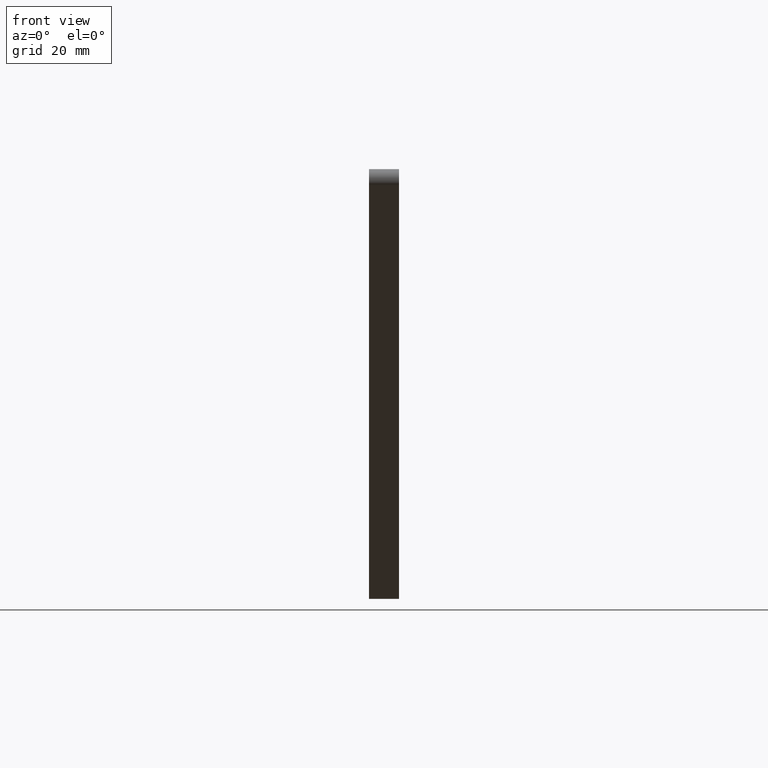
[diagram: clean part render]
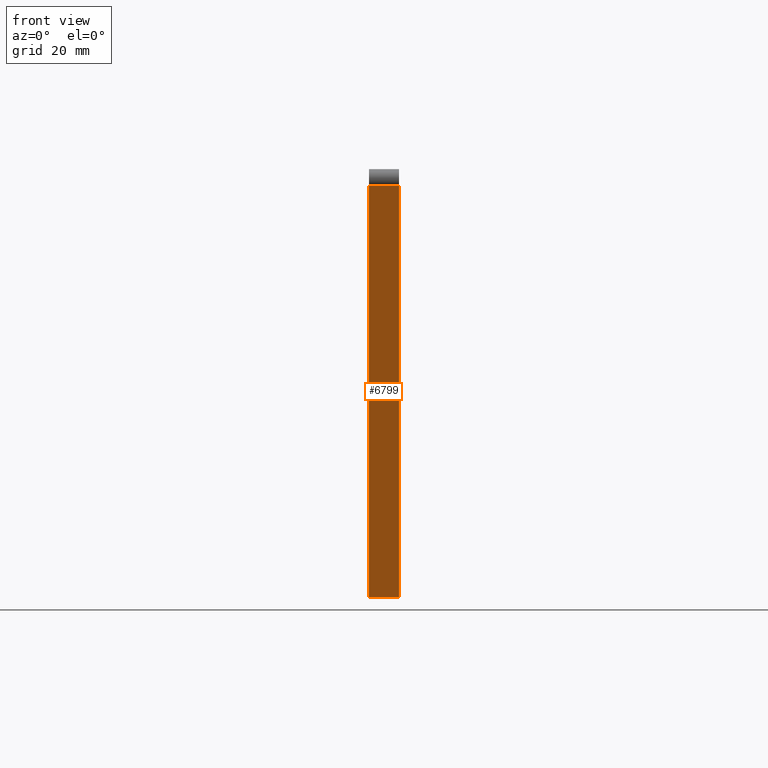
[diagram: same view with one face highlighted and labeled with its STEP entity id]
A machine part, front view. The second image highlights one B-rep face of the part: STEP entity #6799.
In plain terms, the highlighted planar face has unit normal (0, -0.5992, -0.8006).
Its self-contained STEP definition (entity closure, byte-faithful):
#47 = CARTESIAN_POINT ( 'NONE',  ( -2.500000000000000000, -25.14880911321005641, -2.700892242464128401 ) ) ;
#370 = EDGE_CURVE ( 'NONE', #9140, #8377, #8610, .T. ) ;
#548 = DIRECTION ( 'NONE',  ( 1.000000000000000000, -0.000000000000000000, -0.000000000000000000 ) ) ;
#689 = CARTESIAN_POINT ( 'NONE',  ( -2.500000000000000000, 66.87436308221853665, -71.57573618852293862 ) ) ;
#928 = PLANE ( 'NONE',  #3101 ) ;
#992 = EDGE_CURVE ( 'NONE', #10175, #3266, #8268, .T. ) ;
#1589 = DIRECTION ( 'NONE',  ( 1.000000000000000000, -0.000000000000000000, -0.000000000000000000 ) ) ;
#1639 = CARTESIAN_POINT ( 'NONE',  ( -2.500000000000000000, -25.14880911321005641, -2.700892242464130621 ) ) ;
#2094 = ORIENTED_EDGE ( 'NONE', *, *, #370, .F. ) ;
#3101 = AXIS2_PLACEMENT_3D ( 'NONE', #47, #6309, #8349 ) ;
#3266 = VERTEX_POINT ( 'NONE', #10722 ) ;
#4661 = CARTESIAN_POINT ( 'NONE',  ( 2.500000000000000000, -25.14880911321005641, -2.700892242464130621 ) ) ;
#5509 = VECTOR ( 'NONE', #1589, 1000.000000000000000 ) ;
#6193 = VECTOR ( 'NONE', #12440, 1000.000000000000114 ) ;
#6309 = DIRECTION ( 'NONE',  ( 0.000000000000000000, -0.5992060754733746775, -0.8005948283094241891 ) ) ;
#6799 = ADVANCED_FACE ( 'NONE', ( #8298 ), #928, .T. ) ;
#6842 = CARTESIAN_POINT ( 'NONE',  ( -2.500000000000000000, -25.14880911321005641, -2.700892242464130621 ) ) ;
#7078 = EDGE_LOOP ( 'NONE', ( #11157, #2094, #9366, #9537 ) ) ;
#7799 = LINE ( 'NONE', #8006, #6193 ) ;
#8006 = CARTESIAN_POINT ( 'NONE',  ( -2.500000000000000000, -25.14880911321005641, -2.700892242464128401 ) ) ;
#8268 = LINE ( 'NONE', #689, #10422 ) ;
#8298 = FACE_OUTER_BOUND ( 'NONE', #7078, .T. ) ;
#8349 = DIRECTION ( 'NONE',  ( 0.000000000000000000, 0.8005948283094241891, -0.5992060754733746775 ) ) ;
#8377 = VERTEX_POINT ( 'NONE', #4661 ) ;
#8382 = CARTESIAN_POINT ( 'NONE',  ( -2.500000000000000000, 66.87436308221853665, -71.57573618852293862 ) ) ;
#8581 = EDGE_CURVE ( 'NONE', #9140, #10175, #7799, .T. ) ;
#8610 = LINE ( 'NONE', #1639, #5509 ) ;
#9140 = VERTEX_POINT ( 'NONE', #6842 ) ;
#9170 = DIRECTION ( 'NONE',  ( 0.000000000000000000, 0.8005948283094241891, -0.5992060754733745664 ) ) ;
#9366 = ORIENTED_EDGE ( 'NONE', *, *, #8581, .T. ) ;
#9537 = ORIENTED_EDGE ( 'NONE', *, *, #992, .T. ) ;
#10175 = VERTEX_POINT ( 'NONE', #8382 ) ;
#10422 = VECTOR ( 'NONE', #548, 1000.000000000000000 ) ;
#10722 = CARTESIAN_POINT ( 'NONE',  ( 2.500000000000000000, 66.87436308221853665, -71.57573618852293862 ) ) ;
#10835 = VECTOR ( 'NONE', #9170, 1000.000000000000114 ) ;
#11157 = ORIENTED_EDGE ( 'NONE', *, *, #12769, .F. ) ;
#11646 = LINE ( 'NONE', #12365, #10835 ) ;
#12365 = CARTESIAN_POINT ( 'NONE',  ( 2.500000000000000000, -25.14880911321005641, -2.700892242464128401 ) ) ;
#12440 = DIRECTION ( 'NONE',  ( 0.000000000000000000, 0.8005948283094241891, -0.5992060754733745664 ) ) ;
#12769 = EDGE_CURVE ( 'NONE', #8377, #3266, #11646, .T. ) ;